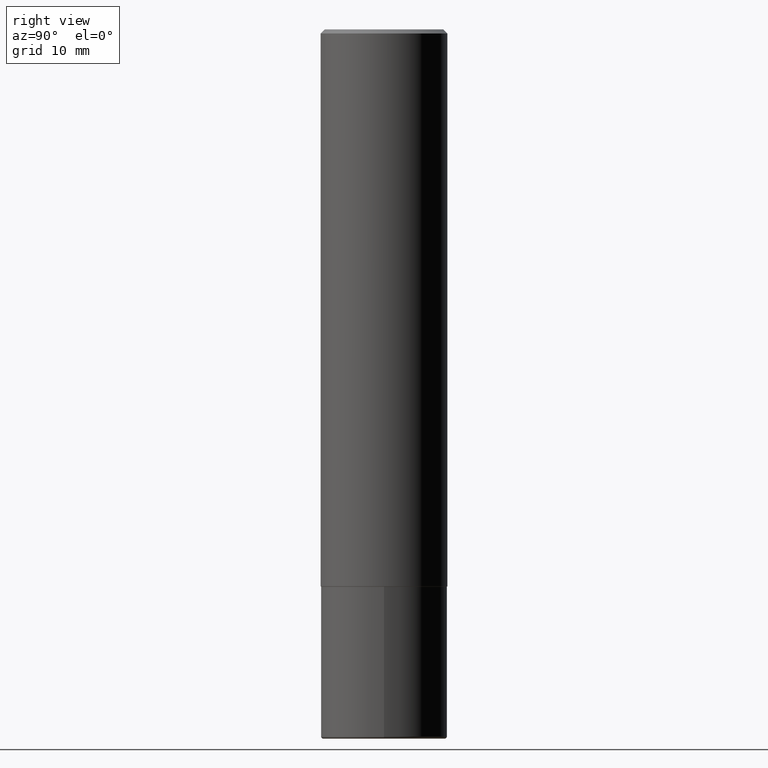
[diagram: clean part render]
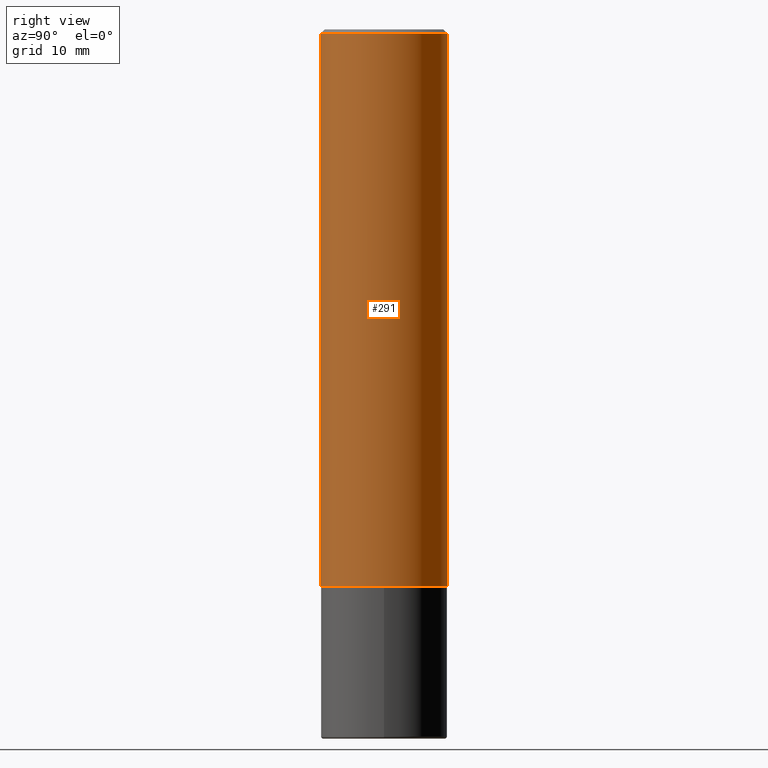
[diagram: same view with one face highlighted and labeled with its STEP entity id]
A machine part, right view. The second image highlights one B-rep face of the part: STEP entity #291.
In plain terms, the highlighted cylindrical surface (partial cylindrical patch) has radius 7.9375 mm, axis along (-0, 0, 1).
Its self-contained STEP definition (entity closure, byte-faithful):
#2 = ORIENTED_EDGE ( 'NONE', *, *, #255, .F. ) ;
#33 = ORIENTED_EDGE ( 'NONE', *, *, #57, .T. ) ;
#44 = ORIENTED_EDGE ( 'NONE', *, *, #135, .F. ) ;
#49 = DIRECTION ( 'NONE',  ( -2.444797333483953649E-29, 3.492442925969092226E-15, 1.000000000000000000 ) ) ;
#50 = LINE ( 'NONE', #169, #107 ) ;
#55 = AXIS2_PLACEMENT_3D ( 'NONE', #112, #49, #369 ) ;
#57 = EDGE_CURVE ( 'NONE', #130, #164, #50, .T. ) ;
#71 = VERTEX_POINT ( 'NONE', #389 ) ;
#107 = VECTOR ( 'NONE', #307, 39.37007874015748143 ) ;
#112 = CARTESIAN_POINT ( 'NONE',  ( 6.720747869747387921E-29, -9.600725603489034077E-15, -2.749000000000000110 ) ) ;
#120 = CARTESIAN_POINT ( 'NONE',  ( 0.000000000000000000, 0.000000000000000000, 0.000000000000000000 ) ) ;
#130 = VERTEX_POINT ( 'NONE', #382 ) ;
#134 = ORIENTED_EDGE ( 'NONE', *, *, #184, .T. ) ;
#135 = EDGE_CURVE ( 'NONE', #71, #306, #272, .T. ) ;
#139 = CARTESIAN_POINT ( 'NONE',  ( 4.889594666967924290E-31, -6.984885851938207279E-17, -0.02000000000000006981 ) ) ;
#149 = CYLINDRICAL_SURFACE ( 'NONE', #161, 0.3125000000000000555 ) ;
#161 = AXIS2_PLACEMENT_3D ( 'NONE', #120, #350, #316 ) ;
#164 = VERTEX_POINT ( 'NONE', #317 ) ;
#169 = CARTESIAN_POINT ( 'NONE',  ( 2.220446049250313081E-15, 0.3125000000000000555, -1.091388414365341542E-15 ) ) ;
#184 = EDGE_CURVE ( 'NONE', #71, #130, #394, .T. ) ;
#223 = DIRECTION ( 'NONE',  ( -6.982962677686265133E-15, -1.000000000000000000, 3.496765431890258103E-15 ) ) ;
#238 = DIRECTION ( 'NONE',  ( -2.444797333483953649E-29, 3.492442925969092620E-15, 1.000000000000000000 ) ) ;
#241 = CIRCLE ( 'NONE', #418, 0.3124999999999998890 ) ;
#255 = EDGE_CURVE ( 'NONE', #306, #164, #241, .T. ) ;
#258 = DIRECTION ( 'NONE',  ( -2.444797333483953649E-29, 3.492442925969092226E-15, 1.000000000000000000 ) ) ;
#272 = LINE ( 'NONE', #408, #381 ) ;
#289 = CARTESIAN_POINT ( 'NONE',  ( -2.143905624303602036E-15, -0.3124999999999999445, -0.01999999999999897693 ) ) ;
#291 = ADVANCED_FACE ( 'NONE', ( #318 ), #149, .T. ) ;
#299 = EDGE_LOOP ( 'NONE', ( #134, #33, #2, #44 ) ) ;
#306 = VERTEX_POINT ( 'NONE', #289 ) ;
#307 = DIRECTION ( 'NONE',  ( -2.444797333483953649E-29, 3.492442925969092620E-15, 1.000000000000000000 ) ) ;
#316 = DIRECTION ( 'NONE',  ( -6.982962677686266711E-15, -1.000000000000000000, 3.492442925969092226E-15 ) ) ;
#317 = CARTESIAN_POINT ( 'NONE',  ( 2.182175836776957558E-15, 0.3124999999999998335, -0.02000000000000116268 ) ) ;
#318 = FACE_OUTER_BOUND ( 'NONE', #299, .T. ) ;
#350 = DIRECTION ( 'NONE',  ( -2.444797333483953649E-29, 3.492442925969092226E-15, 1.000000000000000000 ) ) ;
#369 = DIRECTION ( 'NONE',  ( -6.982962677686265922E-15, -1.000000000000000000, 3.496765431890253764E-15 ) ) ;
#381 = VECTOR ( 'NONE', #238, 39.37007874015748143 ) ;
#382 = CARTESIAN_POINT ( 'NONE',  ( 2.220446049250347791E-15, 0.3124999999999906741, -2.749000000000000998 ) ) ;
#389 = CARTESIAN_POINT ( 'NONE',  ( -2.182175836776892872E-15, -0.3125000000000099365, -2.748999999999999222 ) ) ;
#394 = CIRCLE ( 'NONE', #55, 0.3125000000000002776 ) ;
#408 = CARTESIAN_POINT ( 'NONE',  ( -2.182175836776958741E-15, -0.3125000000000000555, 1.091388414365341542E-15 ) ) ;
#418 = AXIS2_PLACEMENT_3D ( 'NONE', #139, #258, #223 ) ;